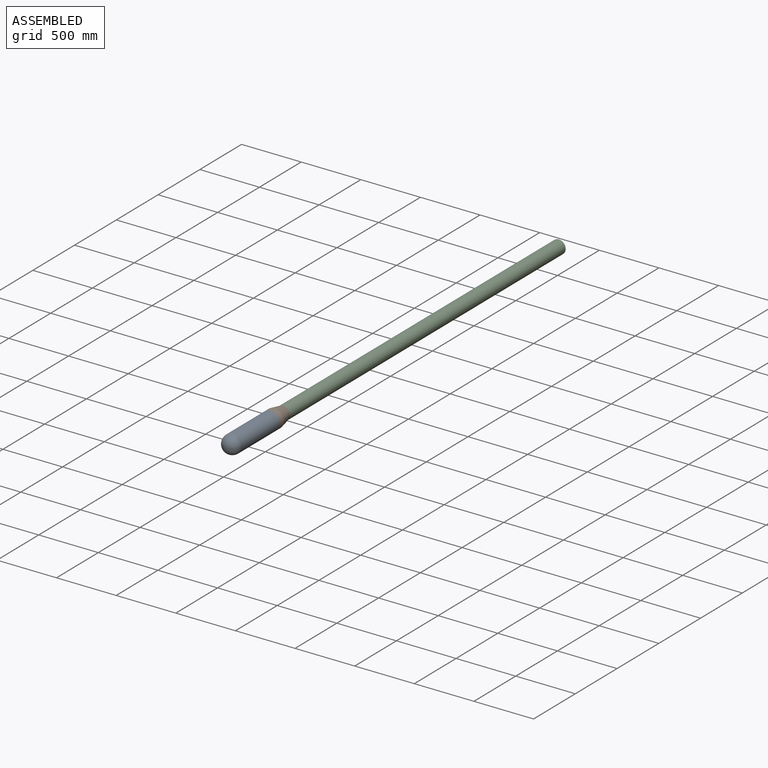
[diagram: assembled view]
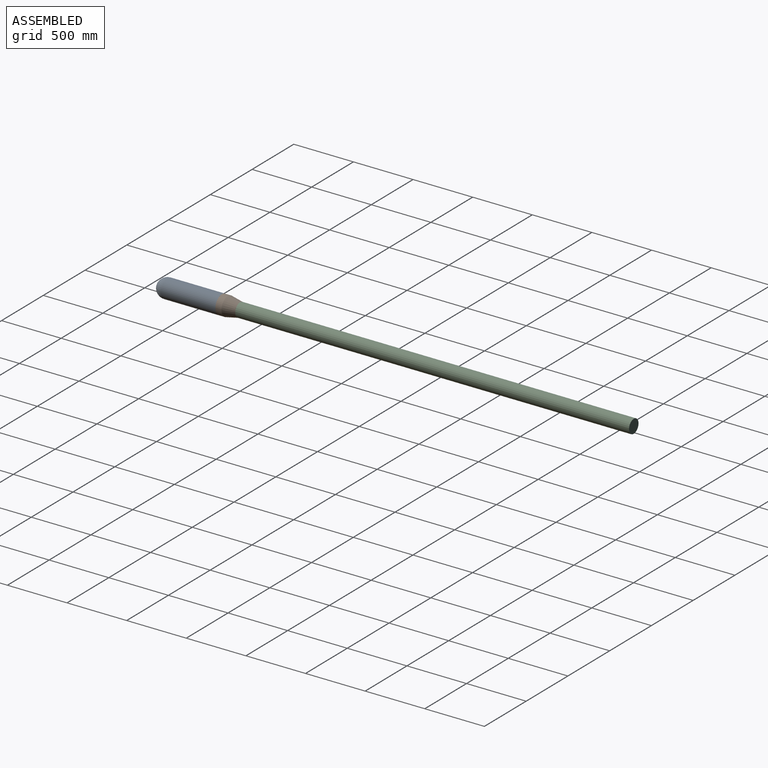
[diagram: assembled view, second angle]
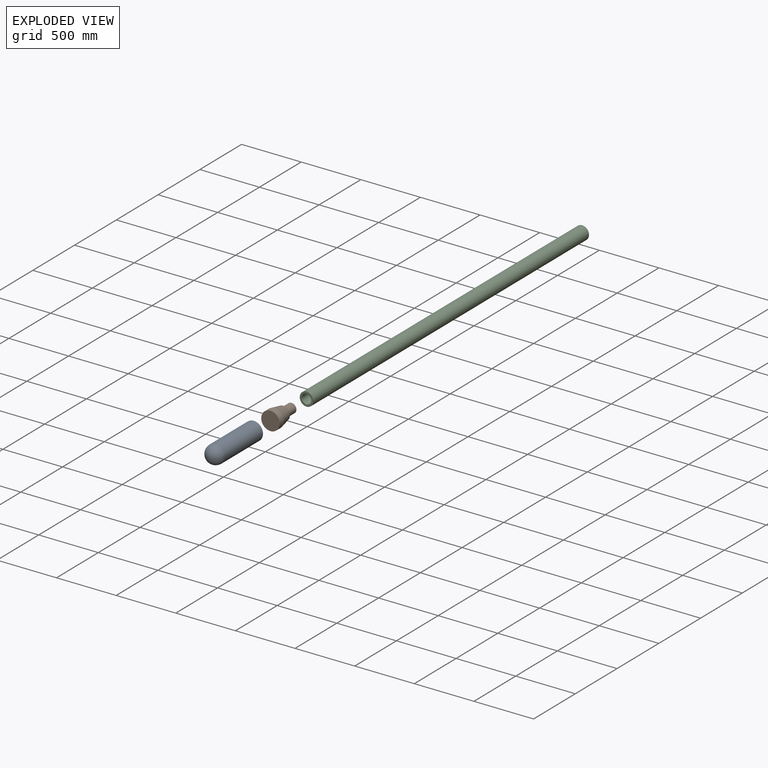
[diagram: exploded view]
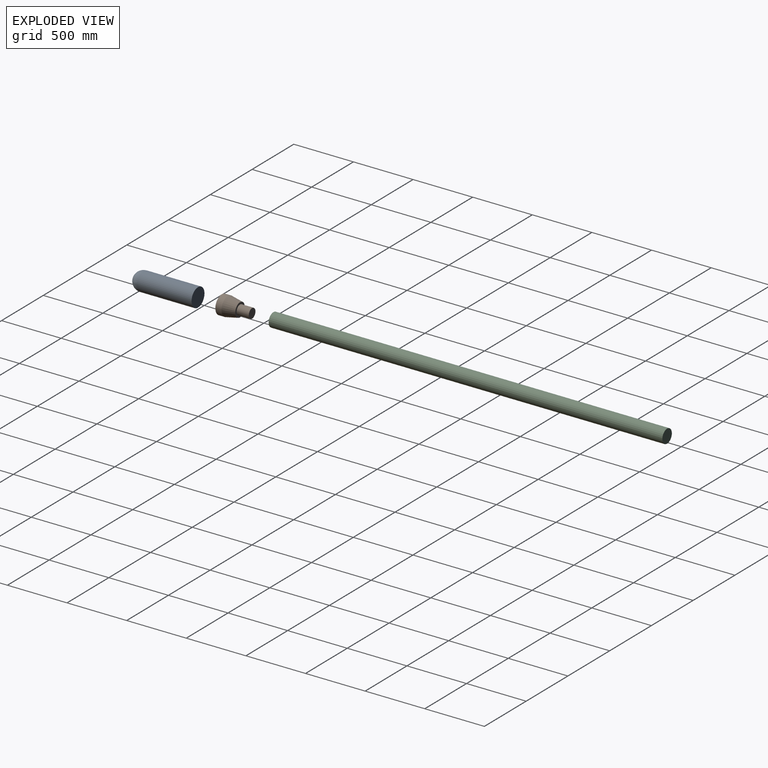
[diagram: exploded view, second angle]
ASSEMBLY  parts=3 mates=4
PART A: 6 faces, bbox 154.9x534.7x154.9 mm
  f0: cylinder r=77.47mm len=457.2mm, axis (0,1,0), area 207012.3mm2, adj f1,f2,f3,f4,f5
  f1: plane 154.94x154.94mm, normal (0,-1,0), area 18854.6mm2, adj f0
  f2: plane 110x22.91mm, normal (0,-1,0), area 1737mm2, adj f0,f4
  f3: plane 110x22.91mm, normal (0,1,0), area 1737mm2, adj f0,f4
  f4: plane 127x110mm, normal (0,0,1), area 13969.8mm2, adj f0,f2,f3
  f5: sphere r=77.47mm, area 37709.2mm2, adj f0
PART B: 6 faces, bbox 154.9x254x154.9 mm
  f0: plane 154.94x154.94mm, normal (0,-1,0), area 18854.6mm2, adj f5
  f1: plane 79.96x79.96mm, normal (0,1,0), area 5021.4mm2, adj f2
  f2: cylinder r=39.98mm len=101.6mm, axis (0,1,0), area 25521.8mm2, adj f1,f3
  f3: plane 114.3x114.3mm, normal (0,1,0), area 5239.4mm2, adj f2,f4
  f4: cone r=77.47mm half-angle=11.3deg, axis (0,-1,0), area 43819.7mm2, adj f3,f5
  f5: cylinder r=77.47mm len=154.94mm, axis (0,1,0), area 24727.3mm2, adj f0,f4
PART C: 5 faces, bbox 114.3x3302x114.3 mm
  f0: cylinder r=57.15mm len=3302mm, axis (0,-1,0), area 1185695.5mm2, adj f1,f2
  f1: plane 114.3x114.3mm, normal (0,1,0), area 10260.8mm2, adj f0
  f2: plane 114.3x114.3mm, normal (0,-1,0), area 5239.4mm2, adj f0,f3
  f3: cylinder r=39.98mm len=127mm, axis (0,-1,0), area 31902.3mm2, adj f2,f4
  f4: plane 79.96x79.96mm, normal (0,-1,0), area 5021.4mm2, adj f3
PLACE A rot(axis=(-0.76,0,0.65),180deg) t=(0,-609.6,0)mm
PLACE B t=(0,-152.4,0)mm
PLACE C at identity
MATE planar B.f2 <-> C.f0  axis (0,1,0) through (0,0,0)mm
MATE planar B.f2 <-> A.f0  axis (0,-1,0) through (0,-152.4,0)mm
MATE cylindrical B.f2 <-> A.f0  axis (0,1,0) through (0,-127,0)mm
MATE slider B.f2 <-> C.f3  axis (0,1,0) through (0,50.8,0)mm
